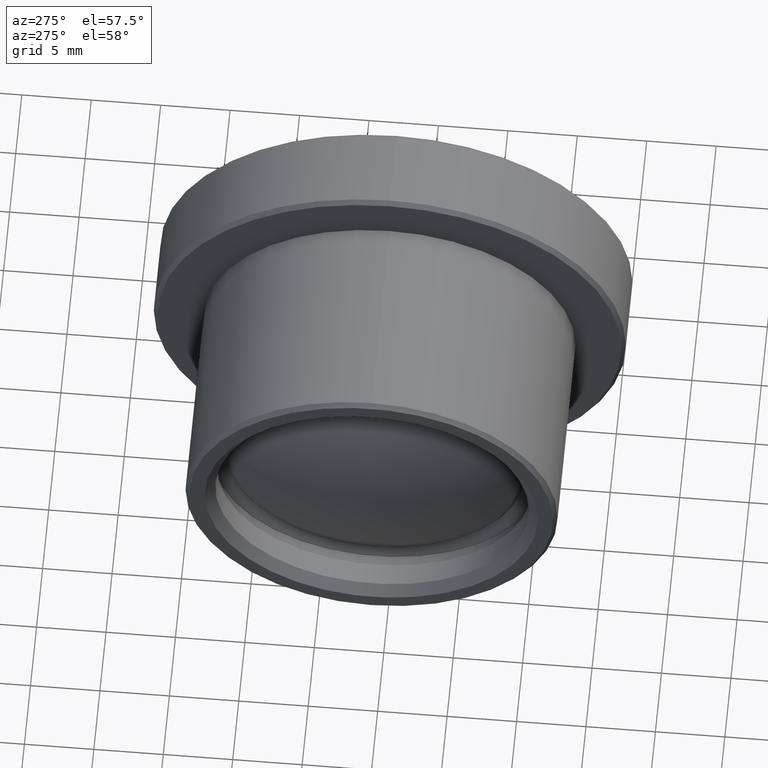
[diagram: clean part render]
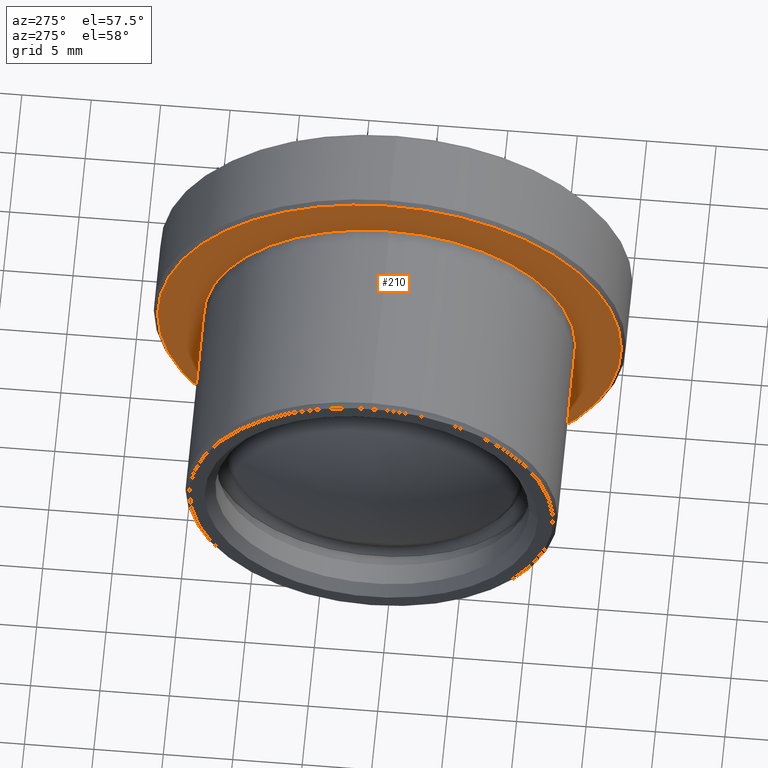
[diagram: same view with one face highlighted and labeled with its STEP entity id]
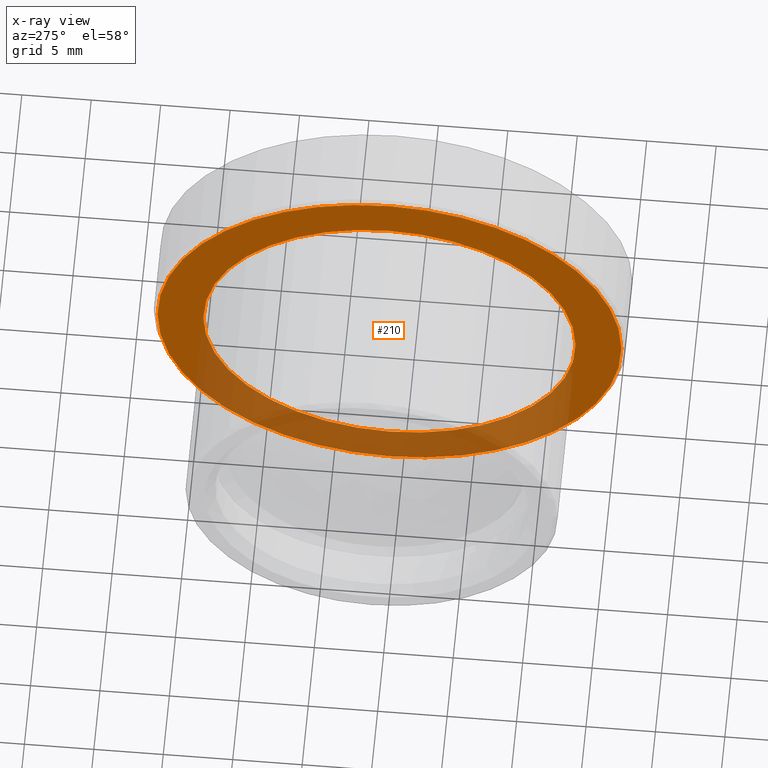
[diagram: x-ray of the same camera — body ghosted, the highlighted face saturated]
A machine part, auxiliary view. The second image highlights one B-rep face of the part: STEP entity #210.
The next image is the same camera in x-ray: the body ghosted, the highlighted face saturated — about 35% of this face is hidden behind the body in this view.
In plain terms, the highlighted planar face has unit normal (1, -0, 0).
Its self-contained STEP definition (entity closure, byte-faithful):
#27 = DIRECTION ( 'NONE',  ( -1.000000000000000000, -0.000000000000000000, -0.000000000000000000 ) ) ;
#36 = EDGE_LOOP ( 'NONE', ( #254 ) ) ;
#43 = CARTESIAN_POINT ( 'NONE',  ( 7655.980875221367569, -204.0133495471515630, 13.40000000572944039 ) ) ;
#45 = EDGE_CURVE ( 'NONE', #230, #230, #463, .T. ) ;
#122 = AXIS2_PLACEMENT_3D ( 'NONE', #227, #276, #347 ) ;
#137 = CARTESIAN_POINT ( 'NONE',  ( 7655.980875221367569, -204.0133495471515630, 0.000000000000000000 ) ) ;
#160 = DIRECTION ( 'NONE',  ( 1.000000000000000000, -0.000000000000000000, 0.000000000000000000 ) ) ;
#161 = PLANE ( 'NONE',  #168 ) ;
#168 = AXIS2_PLACEMENT_3D ( 'NONE', #319, #160, #350 ) ;
#210 = ADVANCED_FACE ( 'NONE', ( #317, #390 ), #161, .F. ) ;
#223 = CIRCLE ( 'NONE', #288, 13.40000000572944039 ) ;
#227 = CARTESIAN_POINT ( 'NONE',  ( 7655.980875221366659, -204.0133495471515630, 0.000000000000000000 ) ) ;
#230 = VERTEX_POINT ( 'NONE', #313 ) ;
#254 = ORIENTED_EDGE ( 'NONE', *, *, #45, .F. ) ;
#276 = DIRECTION ( 'NONE',  ( 1.000000000000000000, 2.612289469706111714E-14, -0.000000000000000000 ) ) ;
#288 = AXIS2_PLACEMENT_3D ( 'NONE', #137, #27, #363 ) ;
#313 = CARTESIAN_POINT ( 'NONE',  ( 7655.980875221366659, -187.3133495471508354, 0.000000000000000000 ) ) ;
#317 = FACE_OUTER_BOUND ( 'NONE', #36, .T. ) ;
#319 = CARTESIAN_POINT ( 'NONE',  ( 7655.980875221366659, -187.3133495471508354, 0.000000000000000000 ) ) ;
#321 = EDGE_LOOP ( 'NONE', ( #442 ) ) ;
#347 = DIRECTION ( 'NONE',  ( 0.000000000000000000, 1.000000000000000000, 0.000000000000000000 ) ) ;
#350 = DIRECTION ( 'NONE',  ( 0.000000000000000000, 0.000000000000000000, -1.000000000000000000 ) ) ;
#363 = DIRECTION ( 'NONE',  ( 0.000000000000000000, 0.000000000000000000, 1.000000000000000000 ) ) ;
#390 = FACE_BOUND ( 'NONE', #321, .T. ) ;
#410 = EDGE_CURVE ( 'NONE', #415, #415, #223, .T. ) ;
#415 = VERTEX_POINT ( 'NONE', #43 ) ;
#442 = ORIENTED_EDGE ( 'NONE', *, *, #410, .F. ) ;
#463 = CIRCLE ( 'NONE', #122, 16.70000000000071338 ) ;